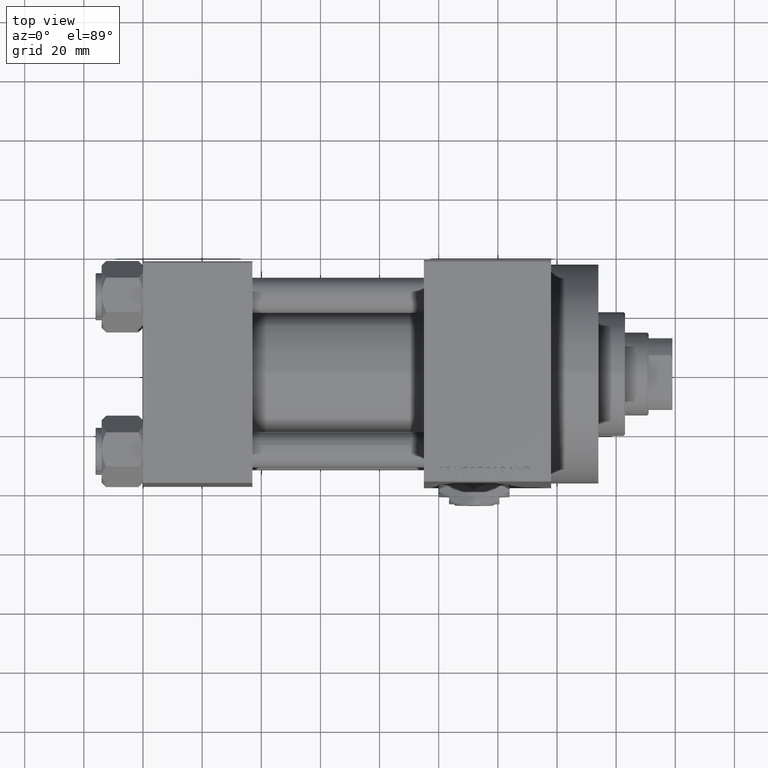
[diagram: clean part render]
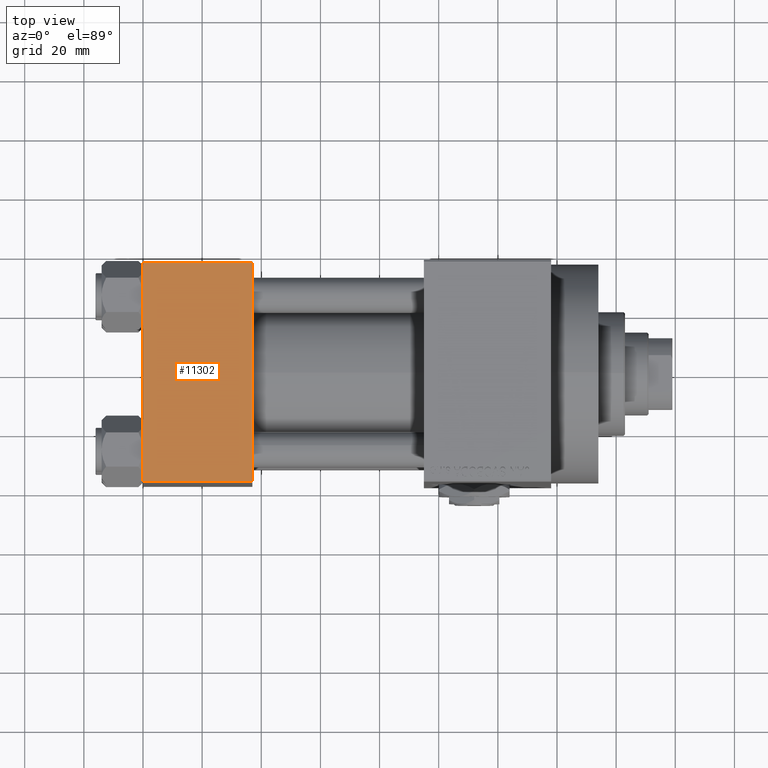
[diagram: same view with one face highlighted and labeled with its STEP entity id]
A machine part, top view. The second image highlights one B-rep face of the part: STEP entity #11302.
In plain terms, the highlighted planar face has unit normal (0, 0, -1).
Its self-contained STEP definition (entity closure, byte-faithful):
#635 = CARTESIAN_POINT ( 'NONE',  ( 37.00000000000000000, 37.49999999999999289, 37.50000000000000000 ) ) ;
#1386 = LINE ( 'NONE', #29055, #27198 ) ;
#6125 = CARTESIAN_POINT ( 'NONE',  ( 37.00000000000000000, -37.00000000000000711, 37.49999999999999289 ) ) ;
#7356 = LINE ( 'NONE', #48240, #19141 ) ;
#7493 = CARTESIAN_POINT ( 'NONE',  ( 0.000000000000000000, 37.49999999999999289, 37.50000000000000000 ) ) ;
#7986 = VERTEX_POINT ( 'NONE', #42025 ) ;
#8495 = VERTEX_POINT ( 'NONE', #36978 ) ;
#8530 = FACE_OUTER_BOUND ( 'NONE', #22337, .T. ) ;
#9467 = EDGE_CURVE ( 'NONE', #7986, #39004, #41428, .T. ) ;
#11302 = ADVANCED_FACE ( 'NONE', ( #8530 ), #42709, .F. ) ;
#12487 = DIRECTION ( 'NONE',  ( 0.000000000000000000, 9.251858538542971581E-17, -1.000000000000000000 ) ) ;
#13098 = CARTESIAN_POINT ( 'NONE',  ( 0.000000000000000000, -37.00000000000000711, 37.49999999999999289 ) ) ;
#13786 = DIRECTION ( 'NONE',  ( 1.000000000000000000, 0.000000000000000000, 0.000000000000000000 ) ) ;
#14151 = EDGE_CURVE ( 'NONE', #28530, #7986, #7356, .T. ) ;
#14296 = DIRECTION ( 'NONE',  ( -1.000000000000000000, 0.000000000000000000, 0.000000000000000000 ) ) ;
#15795 = VECTOR ( 'NONE', #19145, 1000.000000000000000 ) ;
#16556 = ORIENTED_EDGE ( 'NONE', *, *, #14151, .T. ) ;
#17383 = EDGE_CURVE ( 'NONE', #28530, #8495, #1386, .T. ) ;
#19065 = AXIS2_PLACEMENT_3D ( 'NONE', #635, #12487, #46429 ) ;
#19141 = VECTOR ( 'NONE', #14296, 1000.000000000000000 ) ;
#19145 = DIRECTION ( 'NONE',  ( 0.000000000000000000, -1.000000000000000000, -9.251858538542971581E-17 ) ) ;
#22337 = EDGE_LOOP ( 'NONE', ( #45053, #32733, #43233, #16556 ) ) ;
#27198 = VECTOR ( 'NONE', #28571, 1000.000000000000000 ) ;
#28530 = VERTEX_POINT ( 'NONE', #37651 ) ;
#28571 = DIRECTION ( 'NONE',  ( 0.000000000000000000, -1.000000000000000000, -9.251858538542971581E-17 ) ) ;
#29055 = CARTESIAN_POINT ( 'NONE',  ( 37.00000000000000000, 37.49999999999999289, 37.50000000000000000 ) ) ;
#32733 = ORIENTED_EDGE ( 'NONE', *, *, #40071, .T. ) ;
#36978 = CARTESIAN_POINT ( 'NONE',  ( 37.00000000000000000, -37.00000000000000711, 37.49999999999999289 ) ) ;
#37651 = CARTESIAN_POINT ( 'NONE',  ( 37.00000000000000000, 36.99999999999999289, 37.50000000000000000 ) ) ;
#39004 = VERTEX_POINT ( 'NONE', #13098 ) ;
#40071 = EDGE_CURVE ( 'NONE', #39004, #8495, #47976, .T. ) ;
#40523 = VECTOR ( 'NONE', #13786, 1000.000000000000000 ) ;
#41428 = LINE ( 'NONE', #7493, #15795 ) ;
#42025 = CARTESIAN_POINT ( 'NONE',  ( 0.000000000000000000, 36.99999999999999289, 37.50000000000000000 ) ) ;
#42709 = PLANE ( 'NONE',  #19065 ) ;
#43233 = ORIENTED_EDGE ( 'NONE', *, *, #17383, .F. ) ;
#45053 = ORIENTED_EDGE ( 'NONE', *, *, #9467, .T. ) ;
#46429 = DIRECTION ( 'NONE',  ( 0.000000000000000000, 1.000000000000000000, 9.251858538542971581E-17 ) ) ;
#47976 = LINE ( 'NONE', #6125, #40523 ) ;
#48240 = CARTESIAN_POINT ( 'NONE',  ( 0.000000000000000000, 36.99999999999999289, 37.50000000000000000 ) ) ;